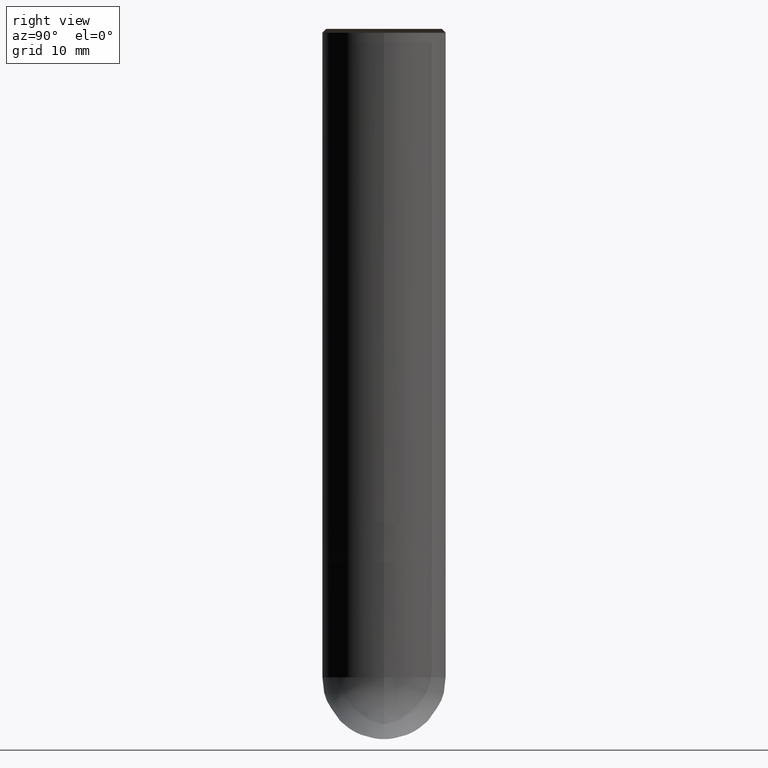
[diagram: clean part render]
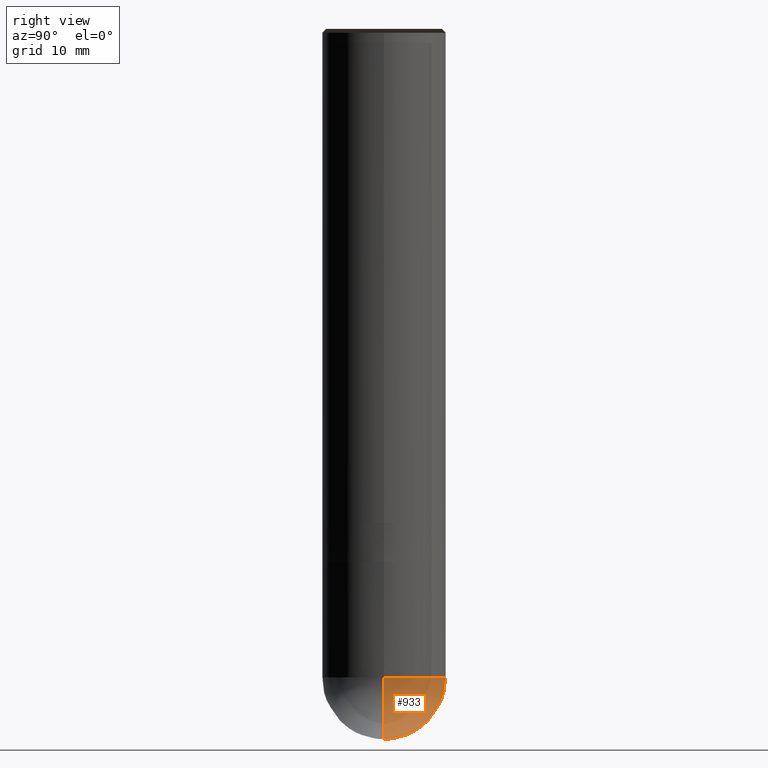
[diagram: same view with one face highlighted and labeled with its STEP entity id]
A machine part, right view. The second image highlights one B-rep face of the part: STEP entity #933.
In plain terms, the highlighted face is a freeform B-spline surface patch.
Its self-contained STEP definition (entity closure, byte-faithful):
#860=CARTESIAN_POINT('',(0.0,0.0,-28.0));
#861=CARTESIAN_POINT('',(8.0,0.0,-28.0));
#862=CARTESIAN_POINT('',(8.0,8.0,-28.0));
#863=CARTESIAN_POINT('',(0.0,8.0,-28.0));
#864=CARTESIAN_POINT('',(-8.0,8.0,-28.0));
#865=CARTESIAN_POINT('',(-8.0,0.0,-28.0));
#866=CARTESIAN_POINT('',(8.0,0.0,-20.0));
#867=CARTESIAN_POINT('',(8.0,8.0,-20.0));
#868=CARTESIAN_POINT('',(0.0,8.0,-20.0));
#869=CARTESIAN_POINT('',(-8.0,8.0,-20.0));
#870=CARTESIAN_POINT('',(-8.0,0.0,-20.0));
#918=(
BOUNDED_SURFACE()
B_SPLINE_SURFACE(2,2,(
(#860,#860,#860,#860,#860),
(#861,#862,#863,#864,#865),
(#866,#867,#868,#869,#870)
), .UNSPECIFIED.,.F.,.F.,.F.)
B_SPLINE_SURFACE_WITH_KNOTS((3,3),(3,2,3),(
0.0,1.0),(
0.0,0.5,1.0), .UNSPECIFIED.)
GEOMETRIC_REPRESENTATION_ITEM()
RATIONAL_B_SPLINE_SURFACE(((1.0,0.707106781187,1.0,0.707106781187,1.0),
(0.707106781187,0.5,0.707106781187,0.5,0.707106781187),
(1.0,0.707106781187,1.0,0.707106781187,1.0)
))
REPRESENTATION_ITEM('')
SURFACE()
);
#919=(
BOUNDED_CURVE()
B_SPLINE_CURVE(2,(#870,#865,#860),.UNSPECIFIED.,.F.,.F.)
B_SPLINE_CURVE_WITH_KNOTS((3,3),
(0.0,1.0),.UNSPECIFIED.)
CURVE()
GEOMETRIC_REPRESENTATION_ITEM()
RATIONAL_B_SPLINE_CURVE((1.0,0.707106781187,1.0))
REPRESENTATION_ITEM('')
);
#920=(
BOUNDED_CURVE()
B_SPLINE_CURVE(2,(#860,#861,#866),.UNSPECIFIED.,.F.,.F.)
B_SPLINE_CURVE_WITH_KNOTS((3,3),
(0.0,1.0),.UNSPECIFIED.)
CURVE()
GEOMETRIC_REPRESENTATION_ITEM()
RATIONAL_B_SPLINE_CURVE((1.0,0.707106781187,1.0))
REPRESENTATION_ITEM('')
);
#921=(
BOUNDED_CURVE()
B_SPLINE_CURVE(2,(#866,#867,#868,#869,#870),.UNSPECIFIED.,.F.,.F.)
B_SPLINE_CURVE_WITH_KNOTS((3,2,3),
(0.0,0.5,1.0),.UNSPECIFIED.)
CURVE()
GEOMETRIC_REPRESENTATION_ITEM()
RATIONAL_B_SPLINE_CURVE((1.0,0.707106781187,1.0,0.707106781187,1.0))
REPRESENTATION_ITEM('')
);
#922=VERTEX_POINT('',#860);
#923=VERTEX_POINT('',#866);
#924=VERTEX_POINT('',#870);
#925=EDGE_CURVE('',#924,#922,#919,.T.);
#926=EDGE_CURVE('',#922,#923,#920,.T.);
#927=EDGE_CURVE('',#923,#924,#921,.T.);
#928=ORIENTED_EDGE('',*,*,#925,.T.);
#929=ORIENTED_EDGE('',*,*,#926,.T.);
#930=ORIENTED_EDGE('',*,*,#927,.T.);
#931=EDGE_LOOP('',(#928,#929,#930));
#932=FACE_OUTER_BOUND('',#931,.T.);
#933=ADVANCED_FACE('',(#932),#918,.T.);